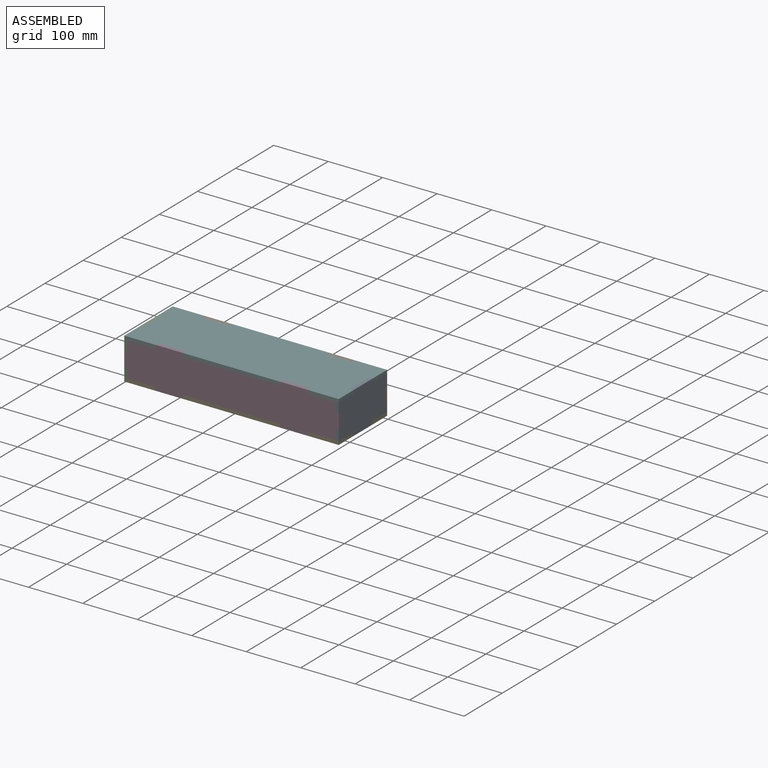
[diagram: assembled view]
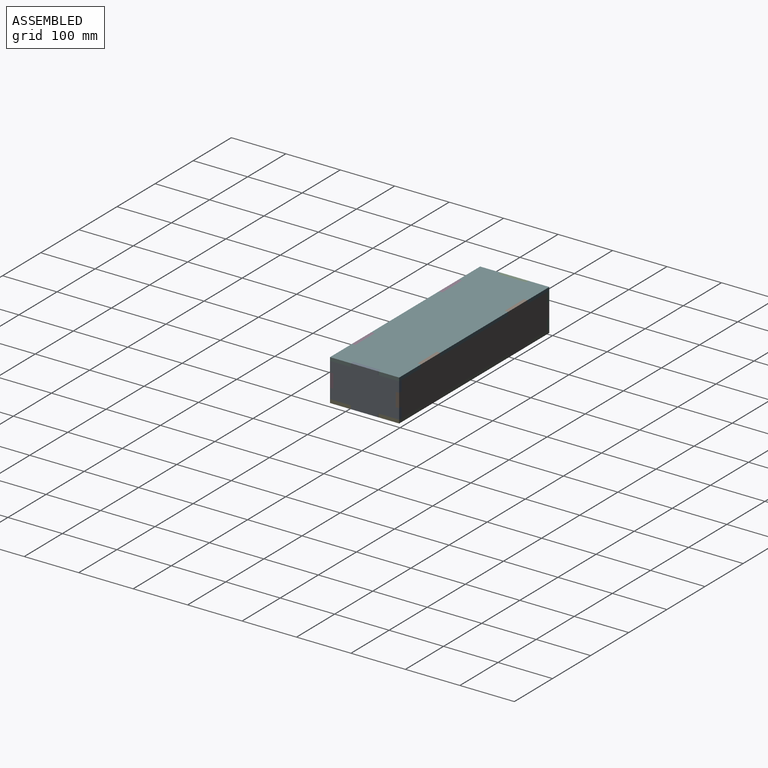
[diagram: assembled view, second angle]
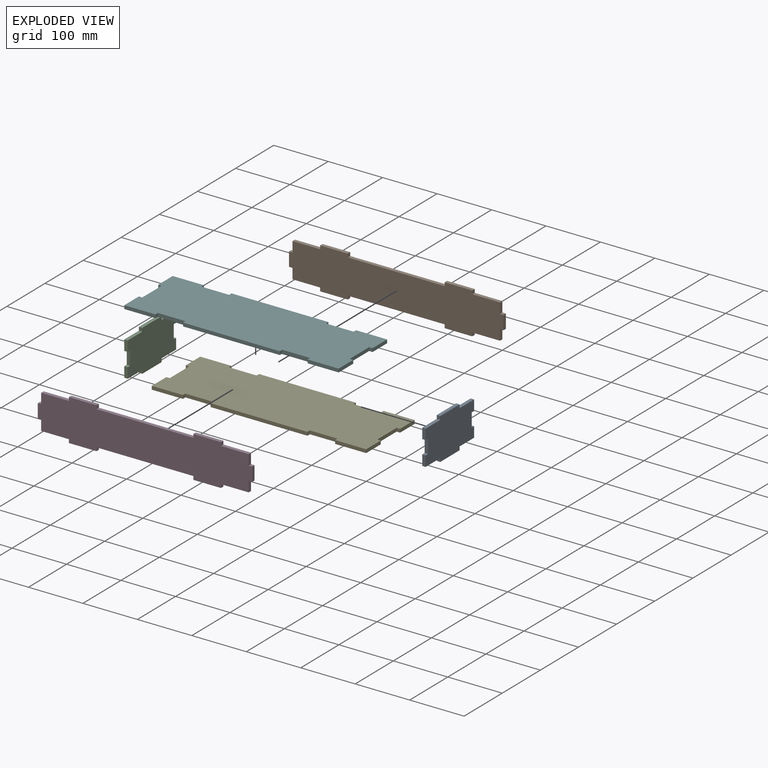
[diagram: exploded view]
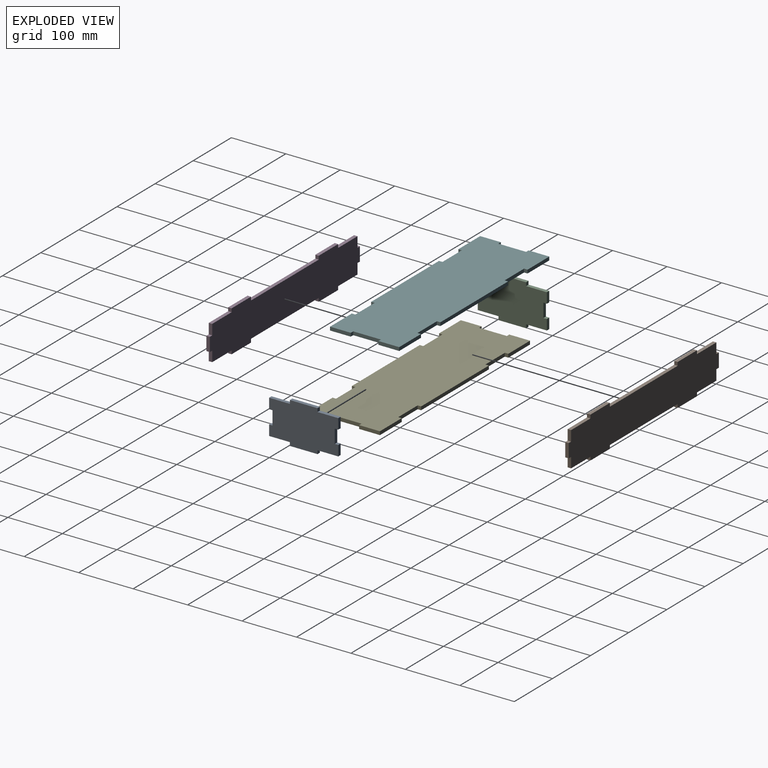
[diagram: exploded view, second angle]
ASSEMBLY  parts=6 mates=4
PART A: 22 faces, bbox 6.4x127x76.2 mm
  f0: plane 6.35x6.35mm, normal (0,0,1), area 40.3mm2, adj f1,f19,f20,f21
  f1: plane 19.05x6.35mm, normal (0,-1,0), area 121mm2, adj f0,f2,f20,f21
  f2: plane 38.1x6.35mm, normal (0,0,-1), area 241.9mm2, adj f1,f3,f20,f21
  f3: plane 6.35x6.35mm, normal (0,-1,0), area 40.3mm2, adj f2,f4,f20,f21
  f4: plane 50.8x6.35mm, normal (0,0,-1), area 322.6mm2, adj f3,f5,f20,f21
  f5: plane 6.35x6.35mm, normal (0,1,0), area 40.3mm2, adj f4,f6,f20,f21
  f6: plane 38.1x6.35mm, normal (0,0,-1), area 241.9mm2, adj f5,f7,f20,f21
  f7: plane 19.05x6.35mm, normal (0,1,0), area 121mm2, adj f6,f8,f20,f21
  f8: plane 6.35x6.35mm, normal (0,0,1), area 40.3mm2, adj f7,f9,f20,f21
  f9: plane 25.4x6.35mm, normal (0,1,0), area 161.3mm2, adj f8,f10,f20,f21
  f10: plane 6.35x6.35mm, normal (0,0,-1), area 40.3mm2, adj f9,f11,f20,f21
  f11: plane 19.05x6.35mm, normal (0,1,0), area 121mm2, adj f10,f12,f20,f21
  f12: plane 38.1x6.35mm, normal (0,0,1), area 241.9mm2, adj f11,f13,f20,f21
  f13: plane 6.35x6.35mm, normal (0,1,0), area 40.3mm2, adj f12,f14,f20,f21
  f14: plane 50.8x6.35mm, normal (0,0,1), area 322.6mm2, adj f13,f15,f20,f21
  f15: plane 6.35x6.35mm, normal (0,-1,0), area 40.3mm2, adj f14,f16,f20,f21
  f16: plane 38.1x6.35mm, normal (0,0,1), area 241.9mm2, adj f15,f17,f20,f21
  f17: plane 19.05x6.35mm, normal (0,-1,0), area 121mm2, adj f16,f18,f20,f21
  f18: plane 6.35x6.35mm, normal (0,0,-1), area 40.3mm2, adj f17,f19,f20,f21
  f19: plane 25.4x6.35mm, normal (0,-1,0), area 161.3mm2, adj f0,f18,f20,f21
  f20: plane 127x76.2mm, normal (1,0,0), area 8387.1mm2, adj f0,f1,f2,f3,f4,f5,f6,f7
  f21: plane 127x76.2mm, normal (-1,0,0), area 8387.1mm2, adj f0,f1,f2,f3,f4,f5,f6,f7
PART B: 30 faces, bbox 393.7x6.4x76.2 mm
  f0: plane 19.05x6.35mm, normal (-1,0,0), area 121mm2, adj f1,f27,f28,f29
  f1: plane 6.35x6.35mm, normal (0,0,1), area 40.3mm2, adj f0,f2,f28,f29
  f2: plane 25.4x6.35mm, normal (-1,0,0), area 161.3mm2, adj f1,f3,f28,f29
  f3: plane 6.35x6.35mm, normal (0,0,-1), area 40.3mm2, adj f2,f4,f28,f29
  f4: plane 19.05x6.35mm, normal (-1,0,0), area 121mm2, adj f3,f5,f28,f29
  f5: plane 50.8x6.35mm, normal (0,0,-1), area 322.6mm2, adj f4,f6,f28,f29
  f6: plane 6.35x6.35mm, normal (-1,0,0), area 40.3mm2, adj f5,f7,f28,f29
  f7: plane 50.8x6.35mm, normal (0,0,-1), area 322.6mm2, adj f6,f8,f28,f29
  f8: plane 6.35x6.35mm, normal (1,0,0), area 40.3mm2, adj f7,f9,f28,f29
  f9: plane 177.8x6.35mm, normal (0,0,-1), area 1129mm2, adj f8,f10,f28,f29
  f10: plane 6.35x6.35mm, normal (-1,0,0), area 40.3mm2, adj f9,f11,f28,f29
  f11: plane 50.8x6.35mm, normal (0,0,-1), area 322.6mm2, adj f10,f12,f28,f29
  f12: plane 6.35x6.35mm, normal (1,0,0), area 40.3mm2, adj f11,f13,f28,f29
  f13: plane 50.8x6.35mm, normal (0,0,-1), area 322.6mm2, adj f12,f14,f28,f29
  f14: plane 19.05x6.35mm, normal (1,0,0), area 121mm2, adj f13,f15,f28,f29
  f15: plane 6.35x6.35mm, normal (0,0,-1), area 40.3mm2, adj f14,f16,f28,f29
  f16: plane 25.4x6.35mm, normal (1,0,0), area 161.3mm2, adj f15,f17,f28,f29
  f17: plane 6.35x6.35mm, normal (0,0,1), area 40.3mm2, adj f16,f18,f28,f29
  f18: plane 19.05x6.35mm, normal (1,0,0), area 121mm2, adj f17,f19,f28,f29
  f19: plane 50.8x6.35mm, normal (0,0,1), area 322.6mm2, adj f18,f20,f28,f29
  f20: plane 6.35x6.35mm, normal (1,0,0), area 40.3mm2, adj f19,f21,f28,f29
  f21: plane 50.8x6.35mm, normal (0,0,1), area 322.6mm2, adj f20,f22,f28,f29
  f22: plane 6.35x6.35mm, normal (-1,0,0), area 40.3mm2, adj f21,f23,f28,f29
  f23: plane 177.8x6.35mm, normal (0,0,1), area 1129mm2, adj f22,f24,f28,f29
  f24: plane 6.35x6.35mm, normal (1,0,0), area 40.3mm2, adj f23,f25,f28,f29
  f25: plane 50.8x6.35mm, normal (0,0,1), area 322.6mm2, adj f24,f26,f28,f29
  f26: plane 6.35x6.35mm, normal (-1,0,0), area 40.3mm2, adj f25,f27,f28,f29
  f27: plane 50.8x6.35mm, normal (0,0,1), area 322.6mm2, adj f0,f26,f28,f29
  f28: plane 393.7x76.2mm, normal (0,-1,0), area 25806.4mm2, adj f0,f1,f2,f3,f4,f5,f6,f7
  f29: plane 393.7x76.2mm, normal (0,1,0), area 25806.4mm2, adj f0,f1,f2,f3,f4,f5,f6,f7
PART C: same geometry as A
PART D: same geometry as B
PART E: 30 faces, bbox 393.7x127x6.4 mm
  f0: plane 50.8x6.35mm, normal (1,0,0), area 322.6mm2, adj f1,f27,f28,f29
  f1: plane 6.35x6.35mm, normal (0,-1,0), area 40.3mm2, adj f0,f2,f28,f29
  f2: plane 38.1x6.35mm, normal (1,0,0), area 241.9mm2, adj f1,f3,f28,f29
  f3: plane 57.15x6.35mm, normal (0,1,0), area 362.9mm2, adj f2,f4,f28,f29
  f4: plane 6.35x6.35mm, normal (-1,0,0), area 40.3mm2, adj f3,f5,f28,f29
  f5: plane 50.8x6.35mm, normal (0,1,0), area 322.6mm2, adj f4,f6,f28,f29
  f6: plane 6.35x6.35mm, normal (1,0,0), area 40.3mm2, adj f5,f7,f28,f29
  f7: plane 177.8x6.35mm, normal (0,1,0), area 1129mm2, adj f6,f8,f28,f29
  f8: plane 6.35x6.35mm, normal (-1,0,0), area 40.3mm2, adj f7,f9,f28,f29
  f9: plane 50.8x6.35mm, normal (0,1,0), area 322.6mm2, adj f8,f10,f28,f29
  f10: plane 6.35x6.35mm, normal (1,0,0), area 40.3mm2, adj f9,f11,f28,f29
  f11: plane 57.15x6.35mm, normal (0,1,0), area 362.9mm2, adj f10,f12,f28,f29
  f12: plane 38.1x6.35mm, normal (-1,0,0), area 241.9mm2, adj f11,f13,f28,f29
  f13: plane 6.35x6.35mm, normal (0,-1,0), area 40.3mm2, adj f12,f14,f28,f29
  f14: plane 50.8x6.35mm, normal (-1,0,0), area 322.6mm2, adj f13,f15,f28,f29
  f15: plane 6.35x6.35mm, normal (0,1,0), area 40.3mm2, adj f14,f16,f28,f29
  f16: plane 38.1x6.35mm, normal (-1,0,0), area 241.9mm2, adj f15,f17,f28,f29
  f17: plane 57.15x6.35mm, normal (0,-1,0), area 362.9mm2, adj f16,f18,f28,f29
  f18: plane 6.35x6.35mm, normal (1,0,0), area 40.3mm2, adj f17,f19,f28,f29
  f19: plane 50.8x6.35mm, normal (0,-1,0), area 322.6mm2, adj f18,f20,f28,f29
  f20: plane 6.35x6.35mm, normal (-1,0,0), area 40.3mm2, adj f19,f21,f28,f29
  f21: plane 177.8x6.35mm, normal (0,-1,0), area 1129mm2, adj f20,f22,f28,f29
  f22: plane 6.35x6.35mm, normal (1,0,0), area 40.3mm2, adj f21,f23,f28,f29
  f23: plane 50.8x6.35mm, normal (0,-1,0), area 322.6mm2, adj f22,f24,f28,f29
  f24: plane 6.35x6.35mm, normal (-1,0,0), area 40.3mm2, adj f23,f25,f28,f29
  f25: plane 57.15x6.35mm, normal (0,-1,0), area 362.9mm2, adj f24,f26,f28,f29
  f26: plane 38.1x6.35mm, normal (1,0,0), area 241.9mm2, adj f25,f27,f28,f29
  f27: plane 6.35x6.35mm, normal (0,1,0), area 40.3mm2, adj f0,f26,f28,f29
  f28: plane 393.7x127mm, normal (0,0,1), area 48064.4mm2, adj f0,f1,f2,f3,f4,f5,f6,f7
  f29: plane 393.7x127mm, normal (0,0,-1), area 48064.4mm2, adj f0,f1,f2,f3,f4,f5,f6,f7
PART F: same geometry as E
PLACE A t=(193.35,110.14,56.37)mm
PLACE B t=(-6.12,198.24,125.2)mm
PLACE C t=(-194,110.14,56.37)mm
PLACE D t=(-6.12,77.59,125.2)mm
PLACE E t=(-11.54,135.84,10.7)mm
PLACE F t=(-11.54,135.84,80.55)mm
MATE fastened A.f20 <-> F.f26  axis (1,0,0) through (199.7,109.34,80.55)mm
MATE fastened C.f21 <-> F.f12  axis (-1,0,0) through (-194,160.14,80.55)mm
MATE fastened B.f29 <-> F.f7  axis (0,1,0) through (91.75,198.24,80.55)mm
MATE fastened D.f28 <-> F.f17  axis (0,-1,0) through (-136.85,71.24,80.55)mm
